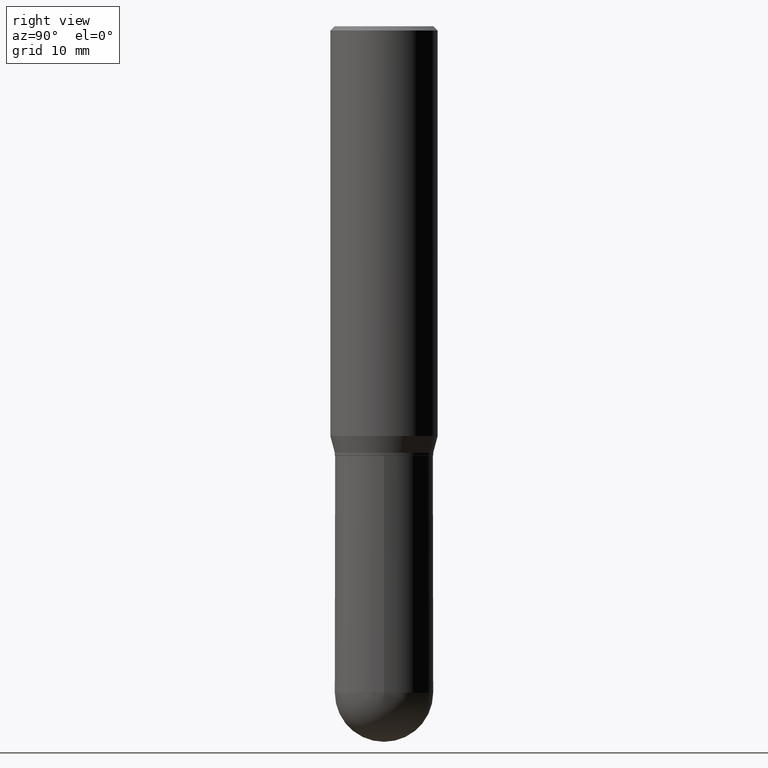
[diagram: clean part render]
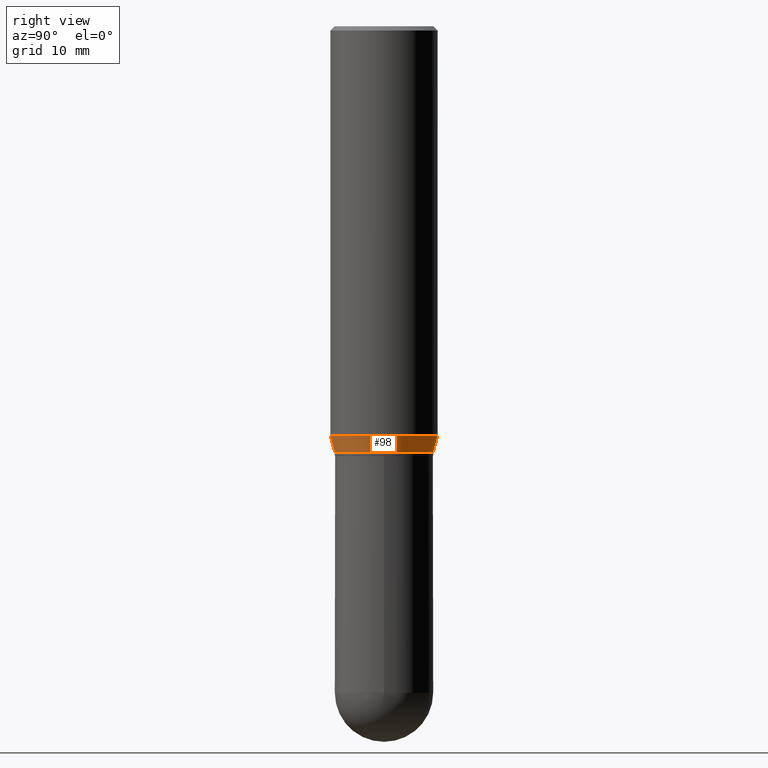
[diagram: same view with one face highlighted and labeled with its STEP entity id]
A machine part, right view. The second image highlights one B-rep face of the part: STEP entity #98.
In plain terms, the highlighted conical surface has half-angle 15 deg.
Its self-contained STEP definition (entity closure, byte-faithful):
#33 = ORIENTED_EDGE ( 'NONE', *, *, #398, .F. ) ;
#36 = CARTESIAN_POINT ( 'NONE',  ( -1.309305502066140101E-15, -0.1875000000000049960, -1.431780007401924903 ) ) ;
#37 = DIRECTION ( 'NONE',  ( -6.982962677686265922E-15, -1.000000000000000000, 3.178415350394723646E-15 ) ) ;
#38 = VECTOR ( 'NONE', #505, 39.37007874015748854 ) ;
#41 = EDGE_CURVE ( 'NONE', #71, #129, #327, .T. ) ;
#71 = VERTEX_POINT ( 'NONE', #349 ) ;
#93 = EDGE_CURVE ( 'NONE', #129, #195, #303, .T. ) ;
#98 = ADVANCED_FACE ( 'NONE', ( #112 ), #261, .T. ) ;
#106 = AXIS2_PLACEMENT_3D ( 'NONE', #230, #357, #268 ) ;
#112 = FACE_OUTER_BOUND ( 'NONE', #191, .T. ) ;
#119 = CARTESIAN_POINT ( 'NONE',  ( 3.643574364184270459E-29, -5.202556597657919005E-15, -1.490000000000000213 ) ) ;
#125 = CARTESIAN_POINT ( 'NONE',  ( -1.200371284294231968E-15, -0.1719000000000050765, -1.489999999999999769 ) ) ;
#129 = VERTEX_POINT ( 'NONE', #241 ) ;
#132 = CIRCLE ( 'NONE', #331, 0.1875000000000000278 ) ;
#134 = CARTESIAN_POINT ( 'NONE',  ( 1.332267629550222558E-15, 0.1874999999999950318, -1.431780007401926014 ) ) ;
#191 = EDGE_LOOP ( 'NONE', ( #252, #474, #33, #291 ) ) ;
#195 = VERTEX_POINT ( 'NONE', #134 ) ;
#198 = LINE ( 'NONE', #125, #282 ) ;
#230 = CARTESIAN_POINT ( 'NONE',  ( 3.643574364184270459E-29, -5.202556597657919005E-15, -1.490000000000000213 ) ) ;
#241 = CARTESIAN_POINT ( 'NONE',  ( 1.276845296160934931E-15, 0.1718999999999946959, -1.490000000000000879 ) ) ;
#246 = CARTESIAN_POINT ( 'NONE',  ( 3.501205993369945932E-29, -4.999272834834623163E-15, -1.431780007401925348 ) ) ;
#252 = ORIENTED_EDGE ( 'NONE', *, *, #41, .T. ) ;
#261 = CONICAL_SURFACE ( 'NONE', #371, 0.1718999999999998862, 0.2617993877991499629 ) ;
#268 = DIRECTION ( 'NONE',  ( -6.982962677686265922E-15, -1.000000000000000000, 3.178415350394723646E-15 ) ) ;
#278 = DIRECTION ( 'NONE',  ( -1.807323732225328167E-15, -0.2588190451025179084, 0.9659258262890690894 ) ) ;
#282 = VECTOR ( 'NONE', #278, 39.37007874015748143 ) ;
#291 = ORIENTED_EDGE ( 'NONE', *, *, #308, .F. ) ;
#303 = LINE ( 'NONE', #430, #38 ) ;
#308 = EDGE_CURVE ( 'NONE', #71, #395, #198, .T. ) ;
#327 = CIRCLE ( 'NONE', #106, 0.1718999999999998862 ) ;
#331 = AXIS2_PLACEMENT_3D ( 'NONE', #246, #376, #362 ) ;
#349 = CARTESIAN_POINT ( 'NONE',  ( -1.200371284294231968E-15, -0.1719000000000050765, -1.489999999999999769 ) ) ;
#357 = DIRECTION ( 'NONE',  ( -2.445351922271321948E-29, 3.491648723260347214E-15, 1.000000000000000000 ) ) ;
#362 = DIRECTION ( 'NONE',  ( -6.982962677686265922E-15, -1.000000000000000000, 2.913971193241880372E-15 ) ) ;
#371 = AXIS2_PLACEMENT_3D ( 'NONE', #119, #431, #37 ) ;
#376 = DIRECTION ( 'NONE',  ( -2.445351922271321948E-29, 3.491648723260347214E-15, 1.000000000000000000 ) ) ;
#395 = VERTEX_POINT ( 'NONE', #36 ) ;
#398 = EDGE_CURVE ( 'NONE', #395, #195, #132, .T. ) ;
#430 = CARTESIAN_POINT ( 'NONE',  ( 1.221422962771647501E-15, 0.1718999999999946959, -1.490000000000000879 ) ) ;
#431 = DIRECTION ( 'NONE',  ( -2.445351922271321948E-29, 3.491648723260347214E-15, 1.000000000000000000 ) ) ;
#474 = ORIENTED_EDGE ( 'NONE', *, *, #93, .T. ) ;
#505 = DIRECTION ( 'NONE',  ( 1.839019923739597949E-15, 0.2588190451025246253, 0.9659258262890670910 ) ) ;